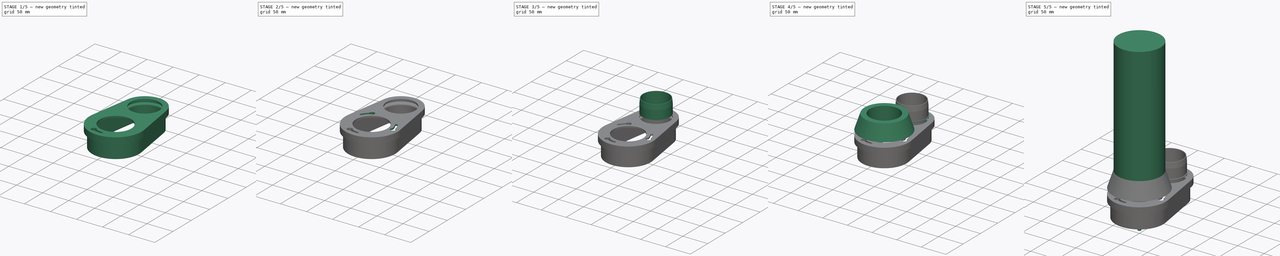
[diagram: build sequence overview — one tinted view per stage of 5, left to right]
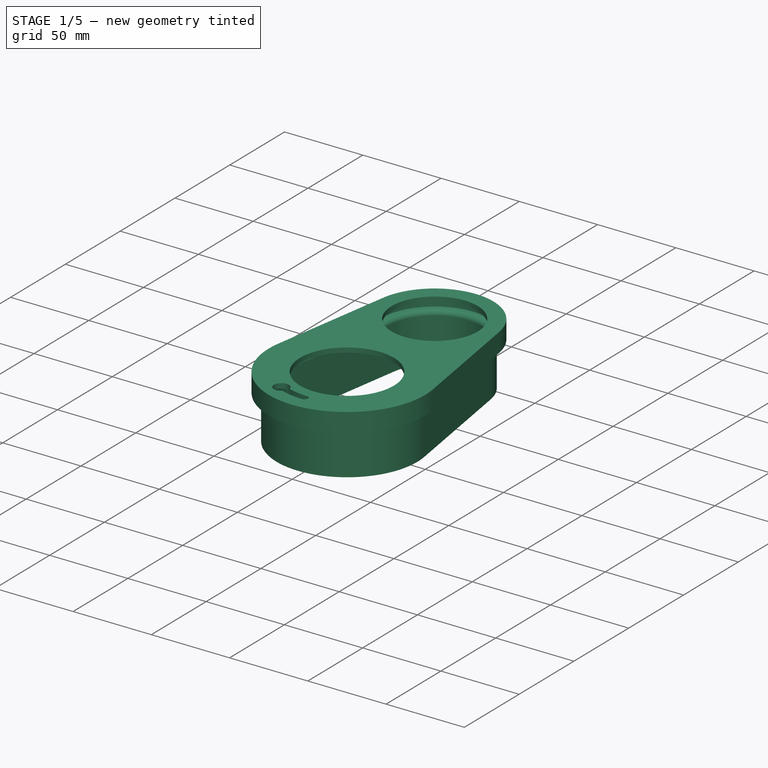
[diagram: stage 1 of 5 — iso view after this stage's code; geometry added in this stage tinted green]
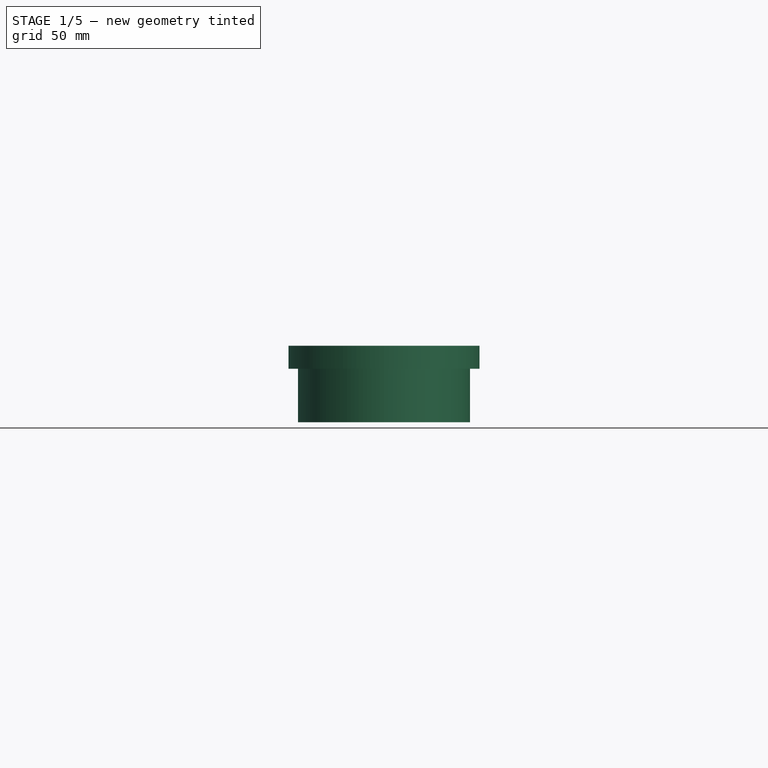
[diagram: stage 1 of 5 — front view after this stage's code; geometry added in this stage tinted green]
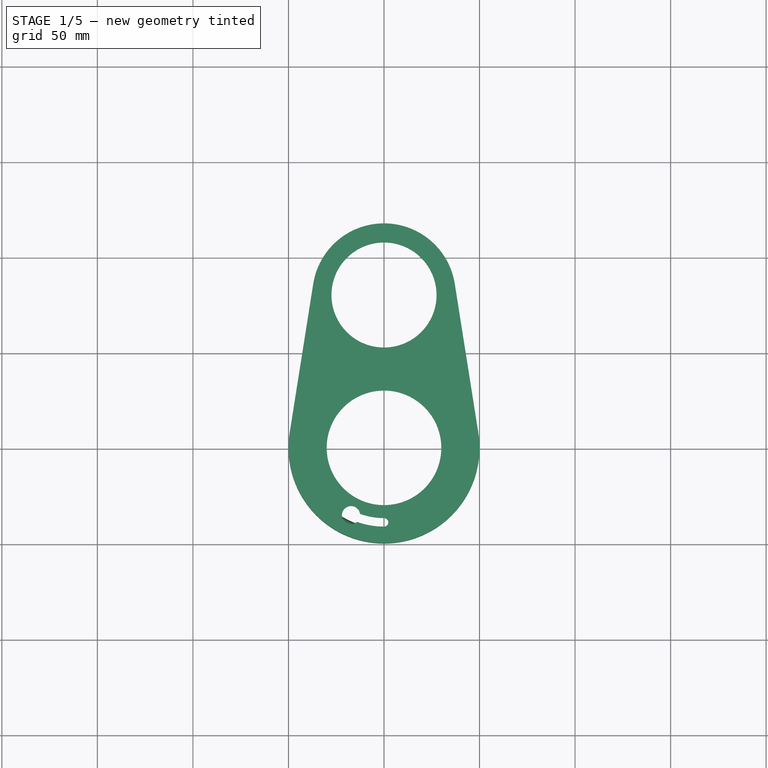
[diagram: stage 1 of 5 — top view after this stage's code; geometry added in this stage tinted green]
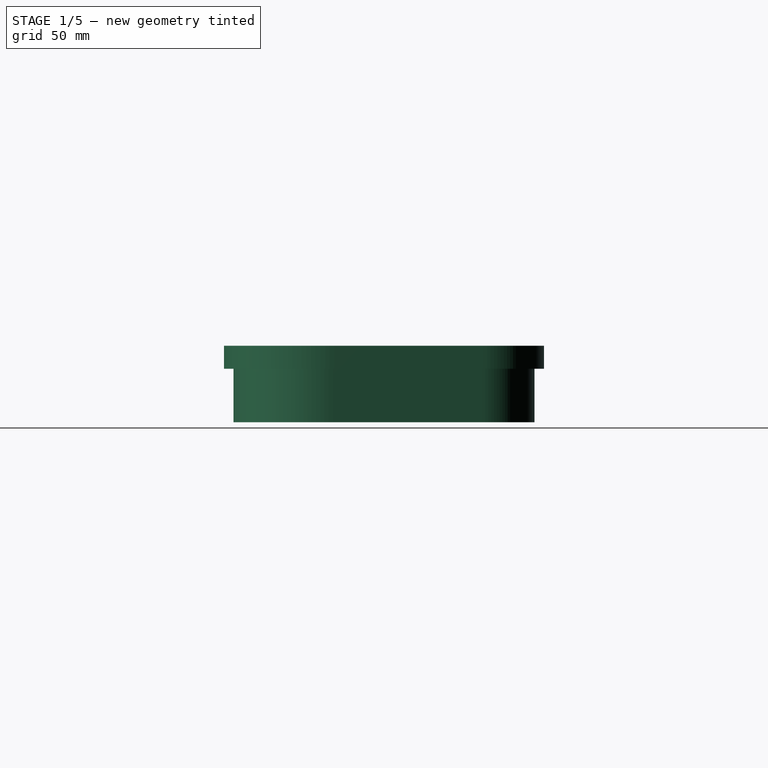
[diagram: stage 1 of 5 — right view after this stage's code; geometry added in this stage tinted green]
FCSTD DOCUMENT  (FreeCAD 0.19R23141 (Git))
Label: 80mm_shoe
License: All rights reserved
LicenseURL: http://en.wikipedia.org/wiki/All_rights_reserved
objects: Sketcher::SketchObject×14, PartDesign::Pocket×6, PartDesign::Pad×5, PartDesign::Body×4, PartDesign::Chamfer×4, PartDesign::PolarPattern×3, PartDesign::Revolution×2, PartDesign::Hole×2, PartDesign::Thickness×1, PartDesign::ShapeBinder×1
note: 62 computed .brp shape members not serialized (recipe doc carries the construction recipe); baked Part::Feature solids carry a one-line shape summary decoded from their .brp

FEATURE [PartDesign::Body] Body  label="Spindle"
  Group = -> [Sketch,Revolution,Sketch001,Pocket]
  Origin = -> Origin
  Tip = -> Pocket
FEATURE [Sketcher::SketchObject] Sketch002
  AttachmentOffset = pos=(0,0,22) rot=(0,0,1;0rad)
  MapMode = 5
  Placement = pos=(0,0,22) rot=(0,0,1;0rad)
  Support = -> [XY_Plane001]
  sketch-geometry (4):
    g0: ArcOfCircle CenterX=0 CenterY=0 CenterZ=0 NormalX=0 NormalY=0 NormalZ=1 AngleXU=0 Radius=50 StartAngle=2.9847 EndAngle=6.44008
    g1: ArcOfCircle CenterX=0 CenterY=80 CenterZ=0 NormalX=0 NormalY=0 NormalZ=1 AngleXU=0 Radius=37.5 StartAngle=0.156893 EndAngle=2.9847
    g2: LineSegment StartX=49.3859 StartY=7.8125 StartZ=0 EndX=37.0394 EndY=85.8594 EndZ=0
    g3: LineSegment StartX=-49.3859 StartY=7.8125 StartZ=0 EndX=-37.0394 EndY=85.8594 EndZ=0
  constraints (9):
    c: Tangent(g0,g3)
    c: Tangent(g0,g2)
    c: Tangent(g2,g1)
    c: Tangent(g3,g1)
    c: Coincident(g0,g-1)
    c: Diameter(g0) = 100
    c: DistanceY(g0,g1) = 80
    c: PointOnObject(g1,g-2)
    c: Diameter(g1) = 75
FEATURE [PartDesign::Pad] Pad
  Direction = (1,1,1)
  Length = 40
  Length2 = 100
  Profile = -> Sketch002
  Type = 0
FEATURE [Sketcher::SketchObject] Sketch003
  ExternalGeometry = -> [Pad]
  MapMode = 5
  Placement = pos=(0,0,62) rot=(0,0,1;0rad)
  Support = -> [Pad]
  sketch-geometry (2):
    g0: Circle CenterX=0 CenterY=80 CenterZ=0 NormalX=0 NormalY=0 NormalZ=1 AngleXU=0 Radius=27.5
    g1: Circle CenterX=0 CenterY=0 CenterZ=0 NormalX=0 NormalY=0 NormalZ=1 AngleXU=0 Radius=30
  constraints (4):
    c: Coincident(g0,g-3)
    c: Diameter(g0) = 55
    c: Coincident(g1,g-1)
    c: Diameter(g1) = 60
FEATURE [Sketcher::SketchObject] Sketch004
  ExternalGeometry = -> [Pad]
  MapMode = 5
  Placement = pos=(0,0,22) rot=(1,0,0;3.14159rad)
  Support = -> [Pad]
  sketch-geometry (5):
    g0: ArcOfCircle CenterX=0 CenterY=-80 CenterZ=0 NormalX=0 NormalY=0 NormalZ=1 AngleXU=0 Radius=32.5 StartAngle=3.29849 EndAngle=6.12629
    g1: ArcOfCircle CenterX=0 CenterY=0 CenterZ=0 NormalX=0 NormalY=0 NormalZ=1 AngleXU=0 Radius=45 StartAngle=6.12629 EndAngle=9.58167
    g2: LineSegment StartX=-44.4473 StartY=-7.03125 StartZ=0 EndX=-32.1008 EndY=-85.0781 EndZ=0
    g3: LineSegment StartX=32.1008 StartY=-85.0781 StartZ=0 EndX=44.4473 EndY=-7.03125 EndZ=0
    g4: Circle CenterX=0 CenterY=0 CenterZ=0 NormalX=0 NormalY=0 NormalZ=1 AngleXU=0 Radius=150
  constraints (10):
    c: Coincident(g0,g-4)
    c: Coincident(g1,g-1)
    c: Tangent(g1,g2) = -1.5708
    c: Tangent(g0,g3) = -1.5708
    c: Tangent(g2,g0) = -1.5708
    c: Tangent(g3,g1) = -1.5708
    c: Diameter(g1) = 90
    c: Diameter(g0) = 65
    c: Coincident(g4,g1)
    c: Diameter(g4) = 300
FEATURE [PartDesign::Pocket] Pocket001
  BaseFeature = -> Pad
  Length = 28
  Length2 = 100
  Profile = -> Sketch004
  Type = 0
FEATURE [PartDesign::Thickness] Thickness
  Base = -> Pocket001 [Face11]
  BaseFeature = -> Pocket001
  Intersection = false
  Join = 0
  Mode = 0
  Reversed = true
  SupportTransform = false
  Value = 3
FEATURE [PartDesign::Pocket] Pocket002
  BaseFeature = -> Thickness
  Length = 5
  Length2 = 100
  Profile = -> Sketch003
  Type = 1
FEATURE [Sketcher::SketchObject] Sketch005
  MapMode = 5
  Placement = pos=(0,0,62) rot=(0,0,1;0rad)
  Support = -> [Pocket002]
  sketch-geometry (5):
    g0: ArcOfCircle CenterX=0 CenterY=-39 CenterZ=0 NormalX=0 NormalY=0 NormalZ=1 AngleXU=0 Radius=2.25 StartAngle=4.71239 EndAngle=7.85398
    g1: ArcOfCircle CenterX=0 CenterY=0 CenterZ=0 NormalX=0 NormalY=0 NormalZ=1 AngleXU=0 Radius=36.75 StartAngle=4.36332 EndAngle=4.71239
    g2: ArcOfCircle CenterX=0 CenterY=0 CenterZ=0 NormalX=0 NormalY=0 NormalZ=1 AngleXU=0 Radius=41.25 StartAngle=4.36332 EndAngle=4.71239
    g3: ArcOfCircle CenterX=-17.2698 CenterY=-35.2172 CenterZ=0 NormalX=0 NormalY=0 NormalZ=1 AngleXU=0 Radius=4.75 StartAngle=0.144404 EndAngle=5.44065
    g4: LineSegment [constr] StartX=0 StartY=0 StartZ=0 EndX=-14.1083 EndY=-38.7623 EndZ=0
  constraints (16):
    c: PointOnObject(g0,g-2)
    c: PointOnObject(g0,g-2)
    c: PointOnObject(g0,g-2)
    c: Coincident(g1,g-1)
    c: Coincident(g1,g0)
    c: Coincident(g2,g1)
    c: Coincident(g2,g0)
    c: Coincident(g3,g2)
    c: Coincident(g3,g1)
    c: Diameter(g3) = 9.5
    c: Diameter(g0) = 4.5
    c: Coincident(g4,g1)
    c: Coincident(g4,g2)
    c: PointOnObject(g1,g4)
    c: DistanceY(g0,g1) = 39
    c: Angle(g-2,g4) = 2.79253
FEATURE [PartDesign::Pocket] Pocket003
  BaseFeature = -> Pocket002
  Length = 5
  Length2 = 100
  Profile = -> Sketch005
  Type = 0
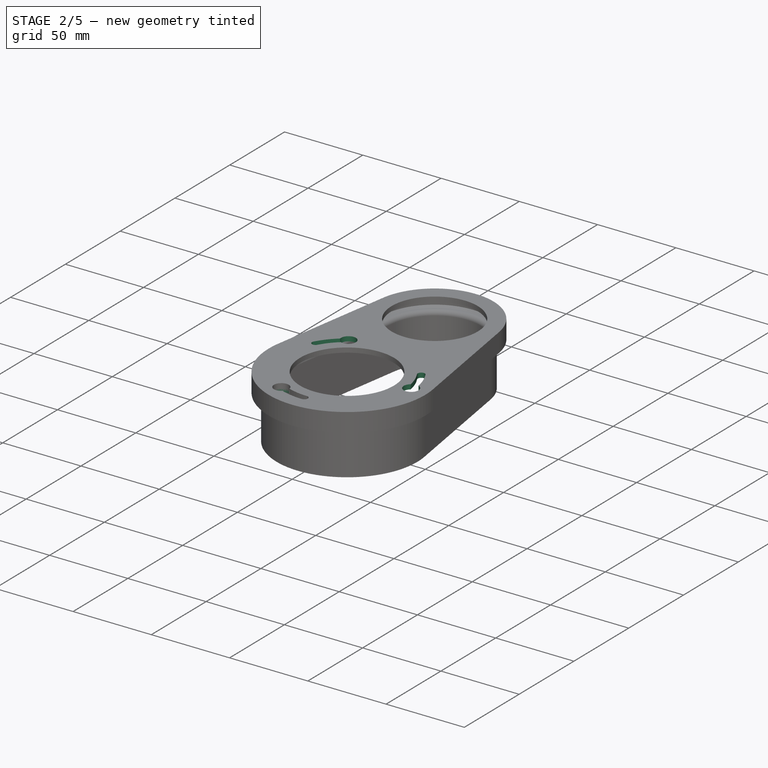
[diagram: stage 2 of 5 — iso view after this stage's code; geometry added in this stage tinted green]
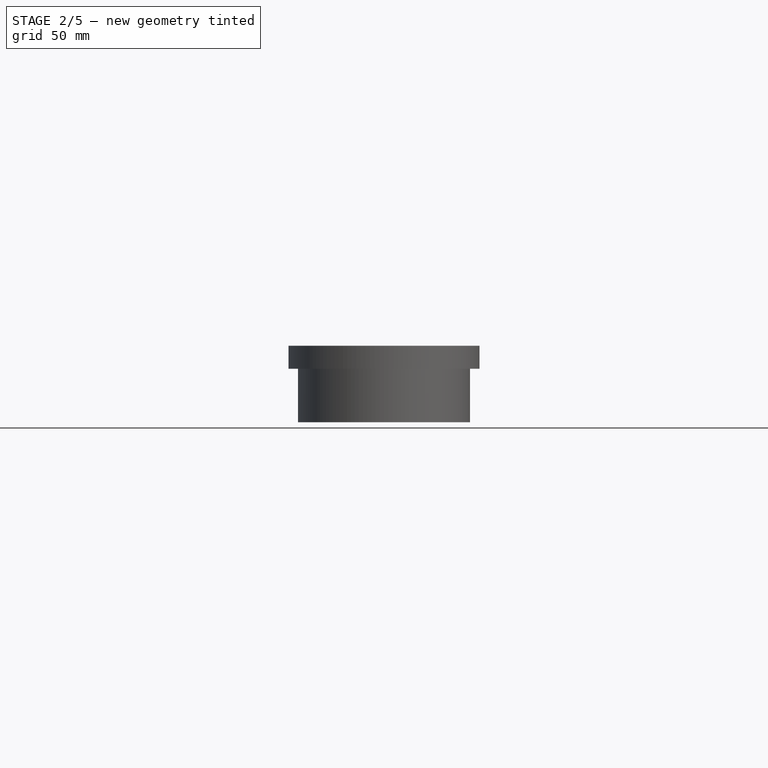
[diagram: stage 2 of 5 — front view after this stage's code; geometry added in this stage tinted green]
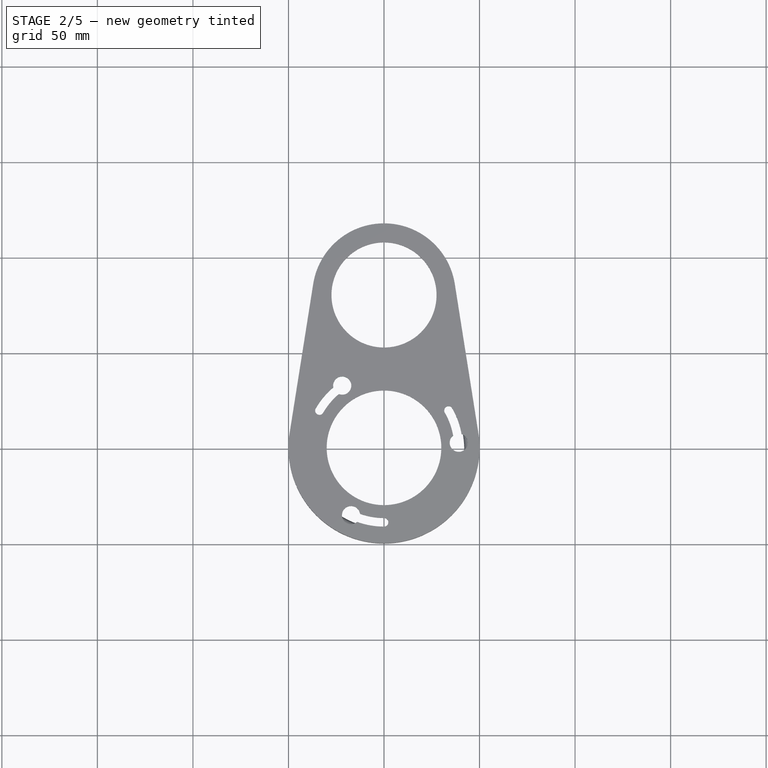
[diagram: stage 2 of 5 — top view after this stage's code; geometry added in this stage tinted green]
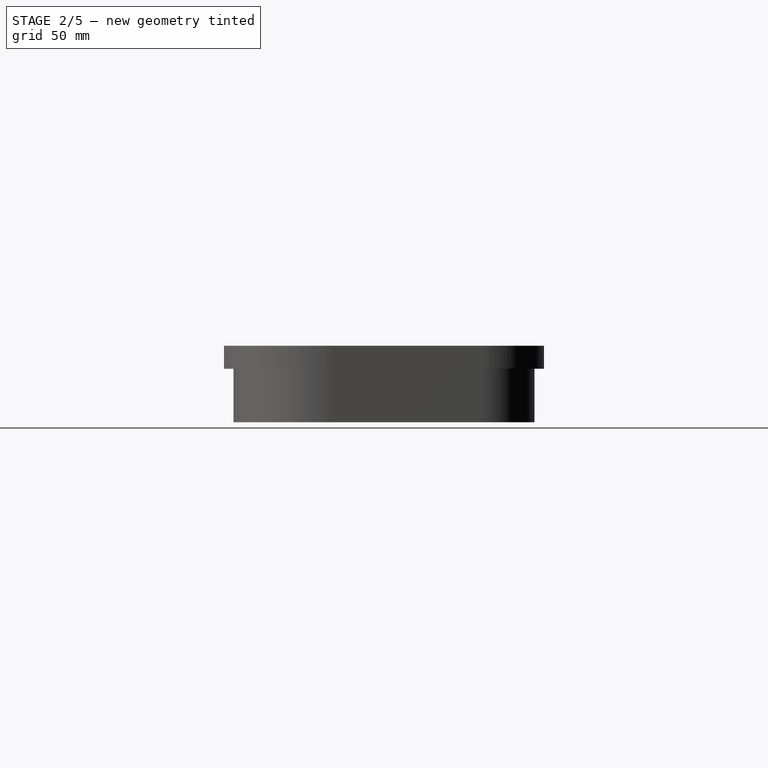
[diagram: stage 2 of 5 — right view after this stage's code; geometry added in this stage tinted green]
FEATURE [PartDesign::PolarPattern] PolarPattern
  Angle = 360
  Axis = -> Sketch005 [N_Axis]
  BaseFeature = -> Pocket003
  Occurrences = 3
  Originals = -> [Pocket003]
FEATURE [PartDesign::Body] Body003  label="Pipe"
  Group = -> [CopyChamfer001,Sketch011,Pad001,Chamfer002,Pad002,Sketch012,Pad003]
  Origin = -> Origin003
  Tip = -> Pad003
FEATURE [PartDesign::Chamfer] Chamfer
  Angle = 60
  Base = -> PolarPattern [Edge89]
  BaseFeature = -> PolarPattern
  ChamferType = 2
  FlipDirection = false
  Size = 1.1
  Size2 = 1
  SupportTransform = false
FEATURE [PartDesign::Chamfer] Chamfer003
  Angle = 45
  Base = -> Chamfer [Edge11]
  BaseFeature = -> Chamfer
  ChamferType = 0
  FlipDirection = false
  Size = 2
  Size2 = 1
  SupportTransform = false
FEATURE [Sketcher::SketchObject] Sketch013
  ExternalGeometry = -> [Chamfer003]
  MapMode = 5
  Placement = pos=(0,0,59) rot=(1,0,0;3.14159rad)
  Support = -> [Chamfer003]
  sketch-geometry (7):
    g0: ArcOfCircle CenterX=-17.2698 CenterY=35.2172 CenterZ=0 NormalX=0 NormalY=0 NormalZ=1 AngleXU=0 Radius=9 StartAngle=1.91986 EndAngle=5.06145
    g1: ArcOfCircle CenterX=-17.2698 CenterY=35.2172 CenterZ=0 NormalX=0 NormalY=0 NormalZ=1 AngleXU=0 Radius=4.75 StartAngle=1.91986 EndAngle=5.06145
    g2: LineSegment StartX=-20.348 StartY=43.6745 StartZ=0 EndX=-18.8944 EndY=39.6808 EndZ=0
    g3: LineSegment StartX=-15.6452 StartY=30.7537 StartZ=0 EndX=-14.1916 EndY=26.76 EndZ=0
    g4: LineSegment [constr] StartX=-17.2698 StartY=35.2172 StartZ=0 EndX=-18.8944 EndY=39.6808 EndZ=0
    g5: LineSegment [constr] StartX=-17.2698 StartY=35.2172 StartZ=0 EndX=-15.6452 EndY=30.7537 EndZ=0
    g6: LineSegment [constr] StartX=-12.5692 StartY=34.5337 StartZ=0 EndX=-14.1083 EndY=38.7623 EndZ=0
  constraints (18):
    c: Coincident(g0,g-3)
    c: Radius(g0) = 9
    c: Coincident(g1,g0)
    c: PointOnObject(g1,g-3)
    c: Coincident(g2,g0)
    c: Coincident(g2,g1)
    c: Coincident(g3,g1)
    c: Coincident(g3,g0)
    c: Parallel(g3,g2)
    c: Coincident(g4,g0)
    c: Coincident(g4,g1)
    c: Coincident(g5,g0)
    c: Coincident(g5,g1)
    c: Parallel(g4,g5)
    c: Parallel(g5,g3)
    c: Coincident(g6,g-3)
    c: Coincident(g6,g-3)
    c: Parallel(g6,g4)
FEATURE [PartDesign::Pad] Pad004
  BaseFeature = -> Chamfer003
  Direction = (1,1,1)
  Length = 2
  Length2 = 100
  Profile = -> Sketch013
  Type = 0
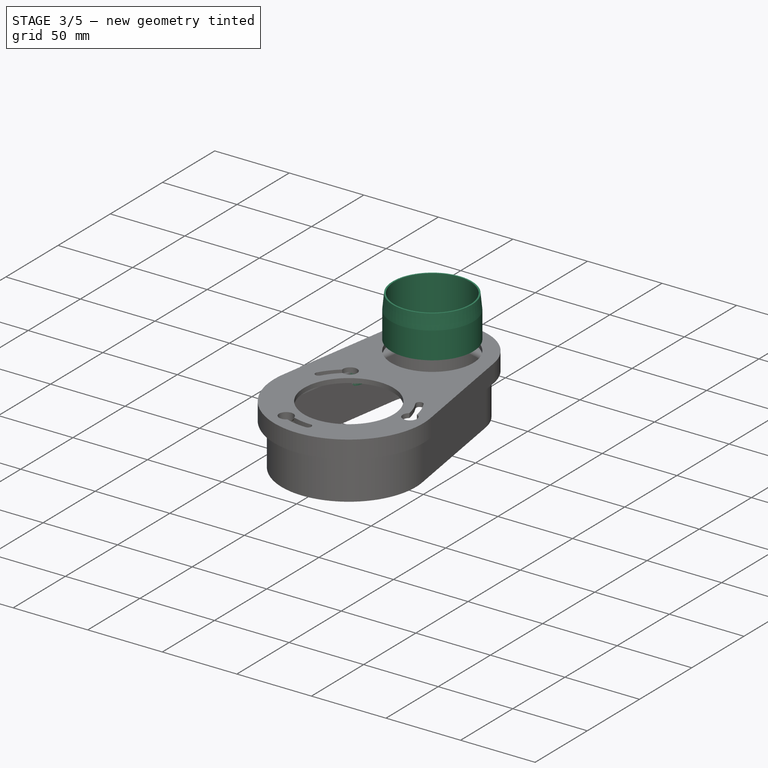
[diagram: stage 3 of 5 — iso view after this stage's code; geometry added in this stage tinted green]
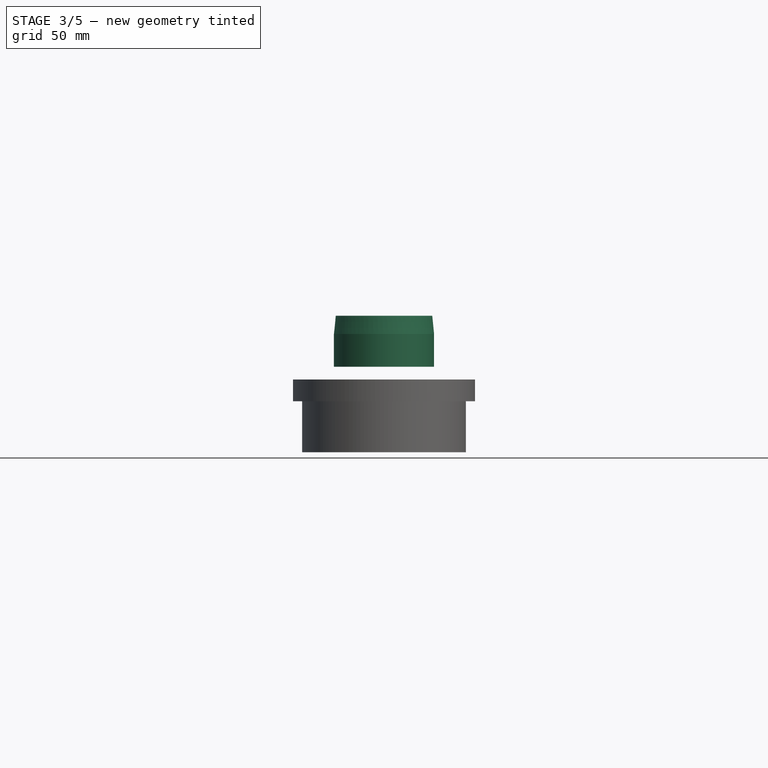
[diagram: stage 3 of 5 — front view after this stage's code; geometry added in this stage tinted green]
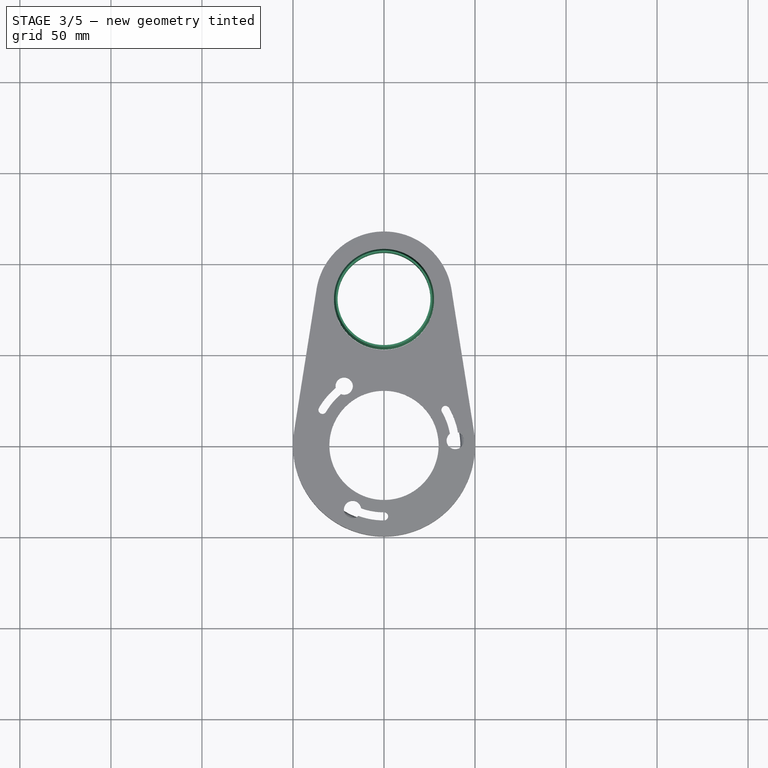
[diagram: stage 3 of 5 — top view after this stage's code; geometry added in this stage tinted green]
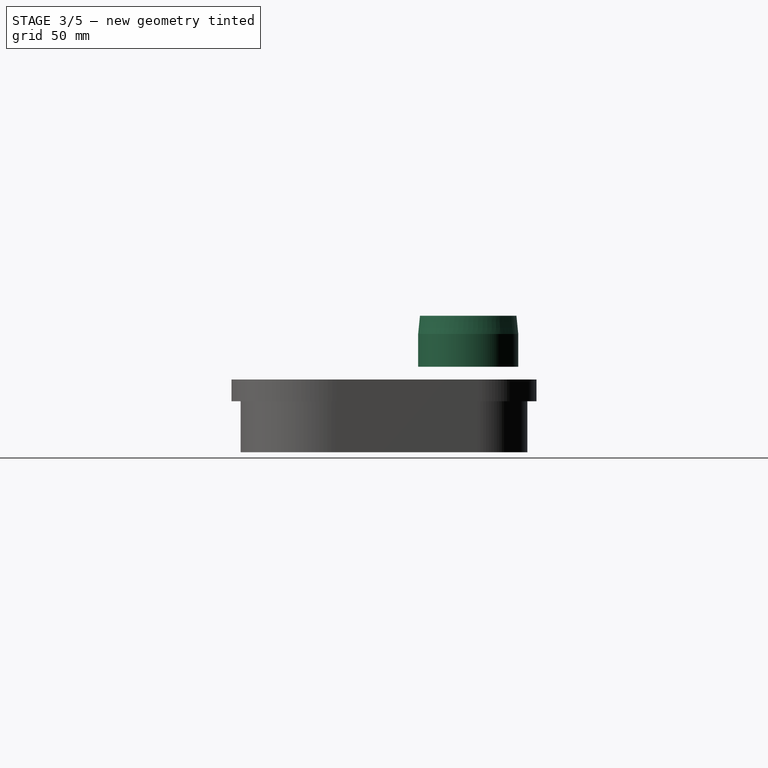
[diagram: stage 3 of 5 — right view after this stage's code; geometry added in this stage tinted green]
FEATURE [PartDesign::Body] Body002  label="Top"
  Group = -> [Sketch006,Revolution001,Sketch007,Hole,PolarPattern001,Sketch008,Pocket004,Sketch009,Hole001,Sketch010,Pocket005]
  Origin = -> Origin002
  Tip = -> Pocket005
FEATURE [PartDesign::ShapeBinder] CopyChamfer001
  TraceSupport = false
FEATURE [Sketcher::SketchObject] Sketch011
  MapMode = 5
  Placement = pos=(0,0,72) rot=(0,0,1;0rad)
  Support = -> [CopyChamfer001]
  sketch-geometry (2):
    g0: Circle CenterX=0 CenterY=80 CenterZ=0 NormalX=0 NormalY=0 NormalZ=1 AngleXU=0 Radius=27.5
    g1: Circle CenterX=0 CenterY=80 CenterZ=0 NormalX=0 NormalY=0 NormalZ=1 AngleXU=0 Radius=25.5
  constraints (5):
    c: PointOnObject(g0,g-2)
    c: Diameter(g0) = 55
    c: DistanceY(g-1,g0) = 80
    c: Coincident(g1,g0)
    c: Diameter(g1) = 51
FEATURE [PartDesign::Pad] Pad001
  Direction = (1,1,1)
  Length = 25
  Length2 = 100
  Profile = -> Sketch011
  Type = 0
FEATURE [PartDesign::Chamfer] Chamfer002
  Angle = 45
  Base = -> Pad001 [Edge3]
  BaseFeature = -> Pad001
  ChamferType = 1
  FlipDirection = false
  Size = 10
  Size2 = 1
  SupportTransform = false
FEATURE [PartDesign::Pad] Pad002
  BaseFeature = -> Chamfer002
  Direction = (1,1,1)
  Length = 3
  Length2 = 100
  Profile = -> Chamfer002 [Face3]
  Type = 0
FEATURE [PartDesign::PolarPattern] PolarPattern002
  Angle = 360
  Axis = -> Sketch013 [N_Axis]
  BaseFeature = -> Pad004
  Occurrences = 3
  Originals = -> [Pad004]
FEATURE [PartDesign::Chamfer] Chamfer004
  Angle = 45
  Base = -> PolarPattern002 [Edge115,Edge112,Edge71,Edge73,Edge65,Edge67]
  BaseFeature = -> PolarPattern002
  ChamferType = 0
  FlipDirection = false
  Size = 1.5
  Size2 = 1
  SupportTransform = false
FEATURE [PartDesign::Body] Body001  label="Bottom"
  Group = -> [Sketch002,Pad,Sketch003,Sketch004,Pocket001,Thickness,Pocket002,Sketch005,Pocket003,PolarPattern,Chamfer,Chamfer003,Sketch013,Pad004,PolarPattern002,Chamfer004]
  Origin = -> Origin001
  Tip = -> Chamfer004
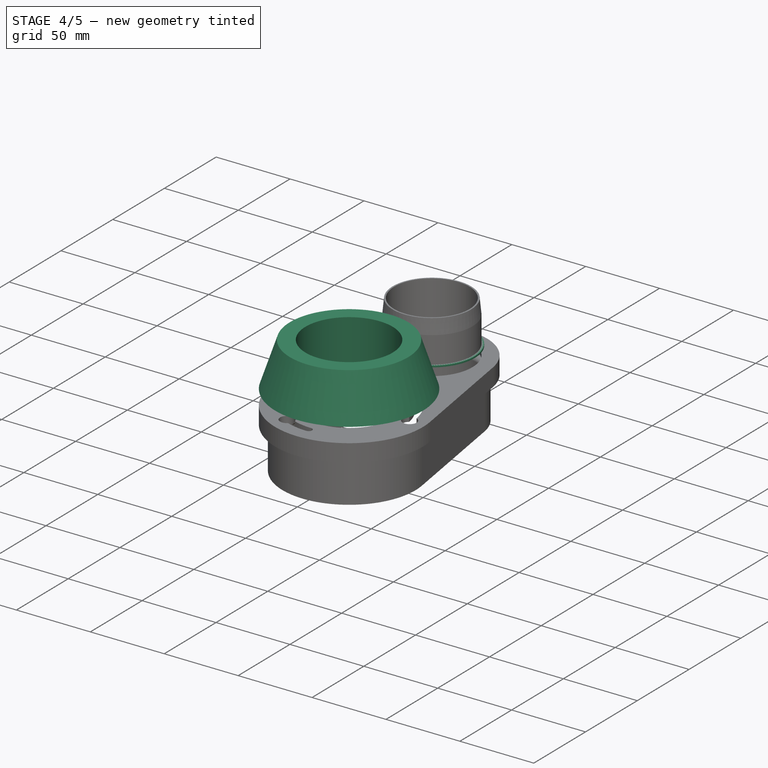
[diagram: stage 4 of 5 — iso view after this stage's code; geometry added in this stage tinted green]
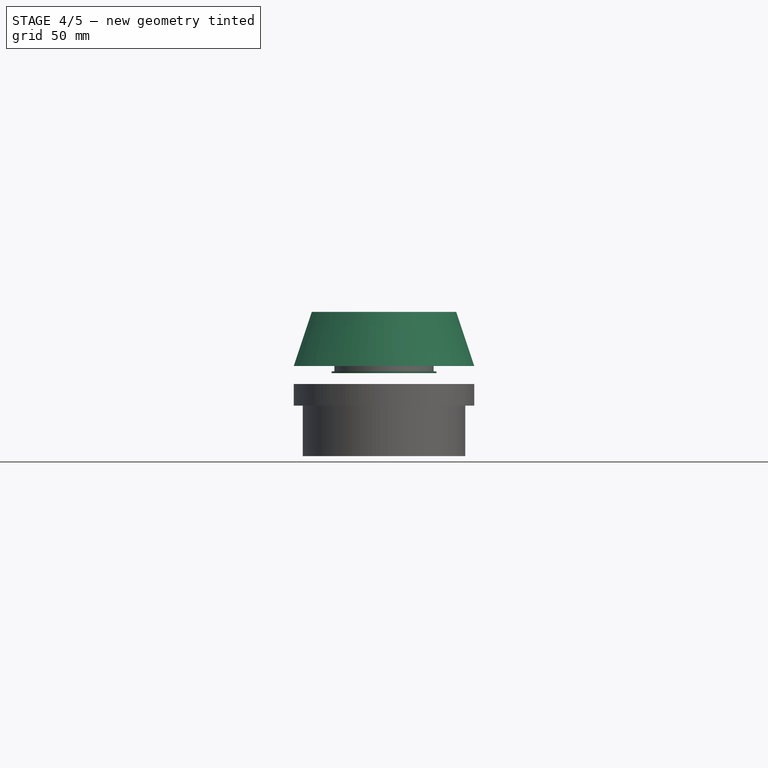
[diagram: stage 4 of 5 — front view after this stage's code; geometry added in this stage tinted green]
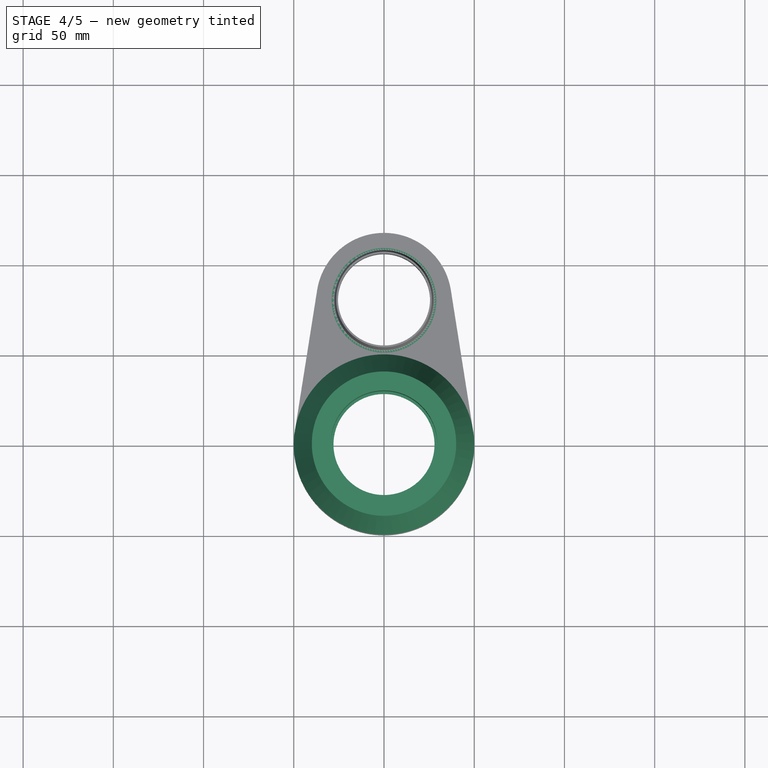
[diagram: stage 4 of 5 — top view after this stage's code; geometry added in this stage tinted green]
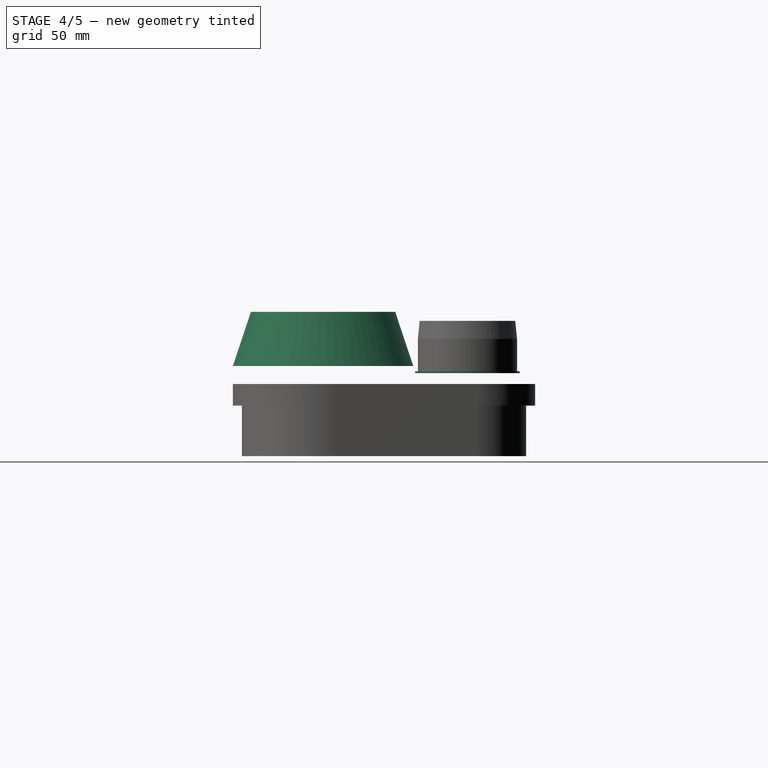
[diagram: stage 4 of 5 — right view after this stage's code; geometry added in this stage tinted green]
FEATURE [Sketcher::SketchObject] Sketch006
  MapMode = 5
  Placement = pos=(0,0,0) rot=(0.57735,0.57735,0.57735;2.0944rad)
  Support = -> [YZ_Plane002]
  sketch-geometry (6):
    g0: LineSegment StartX=-29.5 StartY=102 StartZ=0 EndX=-29.5 EndY=74 EndZ=0
    g1: LineSegment StartX=-29.5 StartY=74 StartZ=0 EndX=-28 EndY=74 EndZ=0
    g2: LineSegment StartX=-28 StartY=74 StartZ=0 EndX=-28 EndY=72 EndZ=0
    g3: LineSegment StartX=-28 StartY=72 StartZ=0 EndX=-50 EndY=72 EndZ=0
    g4: LineSegment StartX=-50 StartY=72 StartZ=0 EndX=-40 EndY=102 EndZ=0
    g5: LineSegment StartX=-40 StartY=102 StartZ=0 EndX=-29.5 EndY=102 EndZ=0
  constraints (18):
    c: Vertical(g0)
    c: Coincident(g0,g1)
    c: Horizontal(g1)
    c: Coincident(g1,g2)
    c: Vertical(g2)
    c: Coincident(g2,g3)
    c: Horizontal(g3)
    c: Coincident(g3,g4)
    c: Coincident(g4,g5)
    c: Coincident(g5,g0)
    c: Horizontal(g5)
    c: DistanceX(g1,g-1) = 28
    c: DistanceX(g0,g-1) = 29.5
    c: DistanceY(g-1,g0) = 74
    c: DistanceY(g2,g2) = 2
    c: DistanceX(g3,g-1) = 50
    c: DistanceX(g4,g-1) = 40
    c: DistanceY(g0,g0) = 28
FEATURE [PartDesign::Revolution] Revolution001
  Angle = 360
  Axis = (-2e-16,3e-16,1)
  Base = (0,0,0)
  Placement = pos=(0,0,0) rot=(0.57735,0.57735,0.57735;2.0944rad)
  Profile = -> Sketch006
  ReferenceAxis = -> Sketch006 [V_Axis]
FEATURE [Sketcher::SketchObject] Sketch007
  MapMode = 5
  Placement = pos=(-4e-14,2.8e-14,72) rot=(0.707107,0.707107,0;3.14159rad)
  Support = -> [Revolution001]
  sketch-geometry (1):
    g0: Circle CenterX=-39 CenterY=0 CenterZ=0 NormalX=0 NormalY=0 NormalZ=1 AngleXU=0 Radius=2.1
  constraints (3):
    c: PointOnObject(g0,g-1)
    c: Diameter(g0) = 4.2
    c: DistanceX(g0,g-1) = 39
FEATURE [PartDesign::Hole] Hole
  BaseFeature = -> Revolution001
  Depth = 25
  DepthType = 0
  Diameter = 4.2
  DrillPoint = 1
  DrillPointAngle = 60
  HoleCutCountersinkAngle = 90
  HoleCutDepth = 0
  HoleCutDiameter = 0
  HoleCutType = 0
  ModelActualThread = false
  Placement = pos=(0,0,0) rot=(0.57735,0.57735,0.57735;2.0944rad)
  Profile = -> Sketch007
  Tapered = false
  TaperedAngle = 90
  ThreadAngle = 0
  ThreadClass = 0
  ThreadCutOffInner = 0
  ThreadCutOffOuter = 0
  ThreadDirection = 0
  ThreadFit = 0
  ThreadPitch = 0
  ThreadSize = 0
  ThreadType = 0
  Threaded = false
FEATURE [PartDesign::PolarPattern] PolarPattern001
  Angle = 360
  Axis = -> Sketch007 [N_Axis]
  BaseFeature = -> Hole
  Occurrences = 3
  Originals = -> [Hole]
  Placement = pos=(0,0,0) rot=(0.57735,0.57735,0.57735;2.0944rad)
FEATURE [Sketcher::SketchObject] Sketch012
  MapMode = 5
  Placement = pos=(0,0,69) rot=(1,0,0;3.14159rad)
  Support = -> [Pad002]
  sketch-geometry (2):
    g0: Circle CenterX=0 CenterY=-80 CenterZ=0 NormalX=0 NormalY=0 NormalZ=1 AngleXU=0 Radius=25.5
    g1: Circle CenterX=0 CenterY=-80 CenterZ=0 NormalX=0 NormalY=0 NormalZ=1 AngleXU=0 Radius=29
  constraints (5):
    c: PointOnObject(g0,g-2)
    c: DistanceY(g0,g-1) = 80
    c: Coincident(g1,g0)
    c: Diameter(g1) = 58
    c: Diameter(g0) = 51
FEATURE [PartDesign::Pad] Pad003
  BaseFeature = -> Pad002
  Direction = (1,1,1)
  Length = 1
  Length2 = 100
  Profile = -> Sketch012
  Type = 0
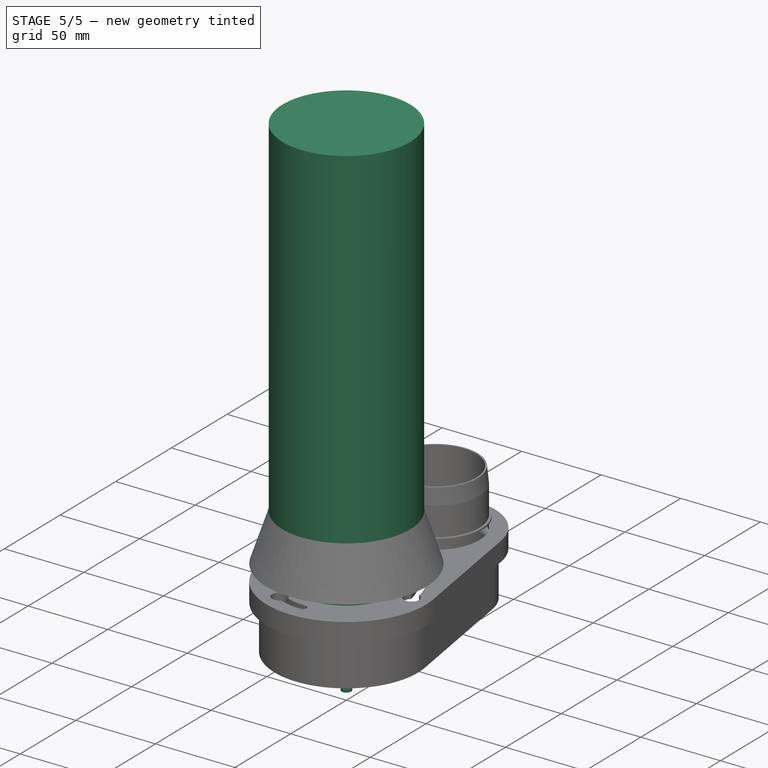
[diagram: stage 5 of 5 — iso view after this stage's code; geometry added in this stage tinted green]
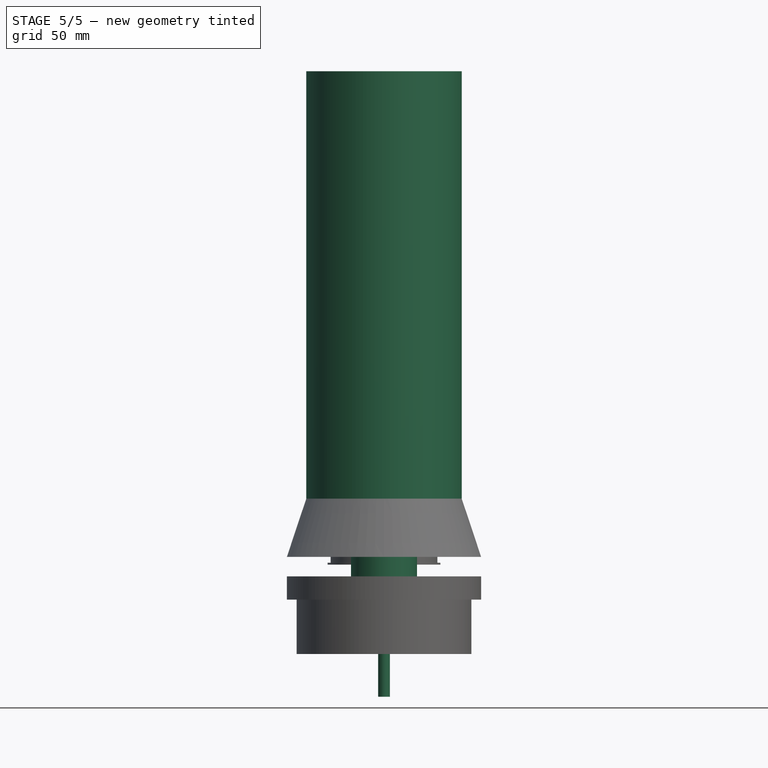
[diagram: stage 5 of 5 — front view after this stage's code; geometry added in this stage tinted green]
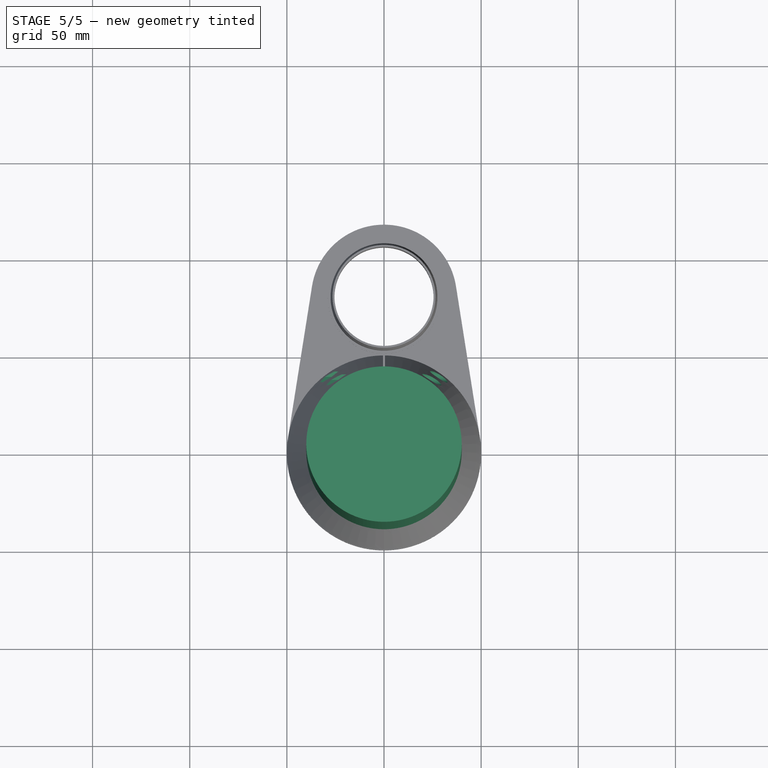
[diagram: stage 5 of 5 — top view after this stage's code; geometry added in this stage tinted green]
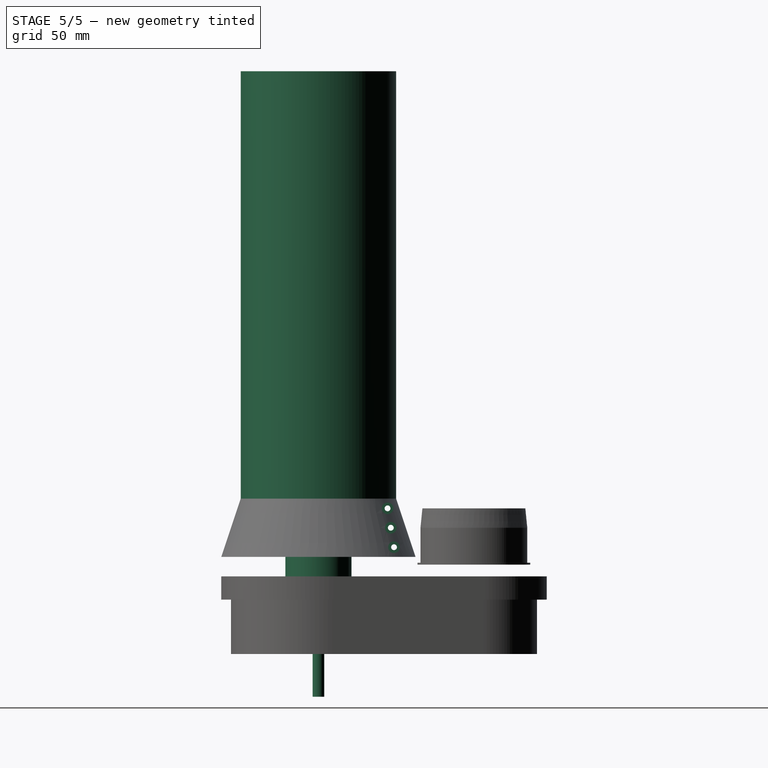
[diagram: stage 5 of 5 — right view after this stage's code; geometry added in this stage tinted green]
FEATURE [Sketcher::SketchObject] Sketch
  MapMode = 5
  Placement = pos=(0,0,0) rot=(1,0,0;1.5708rad)
  Support = -> [XZ_Plane]
  sketch-geometry (12):
    g0: LineSegment StartX=-40 StartY=102 StartZ=0 EndX=-30 EndY=102 EndZ=0
    g1: LineSegment StartX=-30 StartY=102 StartZ=0 EndX=-30 EndY=87 EndZ=0
    g2: LineSegment StartX=-30 StartY=87 StartZ=0 EndX=-30.5 EndY=87 EndZ=0
    g3: LineSegment StartX=-30.5 StartY=87 StartZ=0 EndX=-30.5 EndY=74 EndZ=0
    g4: LineSegment StartX=-30.5 StartY=74 StartZ=0 EndX=-17 EndY=74 EndZ=0
    g5: LineSegment StartX=-17 StartY=74 StartZ=0 EndX=-17 EndY=22 EndZ=0
    g6: LineSegment StartX=-17 StartY=22 StartZ=0 EndX=-3 EndY=22 EndZ=0
    g7: LineSegment StartX=-3 StartY=22 StartZ=0 EndX=-3 EndY=0 EndZ=0
    g8: LineSegment StartX=-3 StartY=0 StartZ=0 EndX=0 EndY=0 EndZ=0
    g9: LineSegment StartX=-40 StartY=102 StartZ=0 EndX=-40 EndY=322 EndZ=0
    g10: LineSegment StartX=-40 StartY=322 StartZ=0 EndX=0 EndY=322 EndZ=0
    g11: LineSegment StartX=0 StartY=322 StartZ=0 EndX=0 EndY=0 EndZ=0
  constraints (35):
    c: Horizontal(g0)
    c: Coincident(g0,g1)
    c: Vertical(g1)
    c: Coincident(g1,g2)
    c: Coincident(g2,g3)
    c: Vertical(g3)
    c: Coincident(g3,g4)
    c: Horizontal(g4)
    c: Coincident(g4,g5)
    c: Vertical(g5)
    c: Coincident(g5,g6)
    c: Horizontal(g6)
    c: Coincident(g6,g7)
    c: Vertical(g7)
    c: Coincident(g7,g8)
    c: Coincident(g8,g-1)
    c: Horizontal(g8)
    c: DistanceX(g8,g8) = 3
    c: DistanceX(g5,g8) = 17
    c: DistanceY(g7,g7) = 22
    c: DistanceY(g5,g5) = 52
    c: DistanceX(g3,g8) = 30.5
    c: DistanceX(g1,g8) = 30
    c: Horizontal(g2)
    c: DistanceY(g3,g3) = 13
    c: DistanceY(g1,g1) = 15
    c: DistanceX(g0,g8) = 40
    c: Coincident(g0,g9)
    c: Vertical(g9)
    c: Coincident(g9,g10)
    c: PointOnObject(g10,g-2)
    c: Horizontal(g10)
    c: Coincident(g10,g11)
    c: Coincident(g11,g8)
    c: DistanceY(g9,g9) = 220
FEATURE [PartDesign::Revolution] Revolution
  Angle = 360
  Axis = (0,2e-16,1)
  Base = (0,0,0)
  Placement = pos=(0,0,0) rot=(1,0,0;1.5708rad)
  Profile = -> Sketch
  ReferenceAxis = -> Sketch [V_Axis]
FEATURE [Sketcher::SketchObject] Sketch001
  MapMode = 5
  Placement = pos=(0,1.46e-14,22) rot=(1,0,0;3.14159rad)
  Support = -> [Revolution]
  sketch-geometry (8):
    g0: LineSegment StartX=17.3205 StartY=-1.8e-15 StartZ=0 EndX=8.66025 EndY=15 EndZ=0
    g1: LineSegment StartX=8.66025 StartY=15 StartZ=0 EndX=-8.66025 EndY=15 EndZ=0
    g2: LineSegment StartX=-8.66025 StartY=15 StartZ=0 EndX=-17.3205 EndY=3.6e-15 EndZ=0
    g3: LineSegment StartX=-17.3205 StartY=3.6e-15 StartZ=0 EndX=-8.66025 EndY=-15 EndZ=0
    g4: LineSegment StartX=-8.66025 StartY=-15 StartZ=0 EndX=8.66025 EndY=-15 EndZ=0
    g5: LineSegment StartX=8.66025 StartY=-15 StartZ=0 EndX=17.3205 EndY=-1.8e-15 EndZ=0
    g6: Circle [constr] CenterX=0 CenterY=0 CenterZ=0 NormalX=0 NormalY=0 NormalZ=1 AngleXU=0 Radius=17.3205
    g7: Circle CenterX=0 CenterY=0 CenterZ=0 NormalX=0 NormalY=0 NormalZ=1 AngleXU=0 Radius=25.4724
  constraints (17):
    c: Coincident(g0,g1)
    c: Coincident(g1,g2)
    c: Coincident(g2,g3)
    c: Coincident(g3,g4)
    c: Coincident(g4,g5)
    c: Coincident(g5,g0)
    c: Equal(g0, g1-g5) x5
    c: PointOnObject(g0,g6)
    c: PointOnObject(g1,g6)
    c: PointOnObject(g2,g6)
    c: PointOnObject(g3,g6)
    c: PointOnObject(g4,g6)
    c: PointOnObject(g5,g6)
    c: Coincident(g6,g-1)
    c: Horizontal(g1)
    c: DistanceY(g3,g1) = 30
    c: Coincident(g7,g-1)
FEATURE [PartDesign::Pocket] Pocket
  BaseFeature = -> Revolution
  Length = 20
  Length2 = 100
  Placement = pos=(0,0,0) rot=(1,0,0;1.5708rad)
  Profile = -> Sketch001
  Type = 0
FEATURE [Sketcher::SketchObject] Sketch008
  MapMode = 5
  Placement = pos=(-9.06e-14,5.1e-14,102) rot=(0,0,-1;1.5708rad)
  Support = -> [PolarPattern001]
  sketch-geometry (6):
    g0: LineSegment StartX=-55 StartY=0.5 StartZ=0 EndX=-25 EndY=0.5 EndZ=0
    g1: LineSegment StartX=-25 StartY=0.5 StartZ=0 EndX=-25 EndY=-0.5 EndZ=0
    g2: LineSegment StartX=-25 StartY=-0.5 StartZ=0 EndX=-55 EndY=-0.5 EndZ=0
    g3: LineSegment StartX=-55 StartY=-0.5 StartZ=0 EndX=-55 EndY=0.5 EndZ=0
    g4: LineSegment [constr] StartX=-25 StartY=-0.5 StartZ=0 EndX=0 EndY=0 EndZ=0
    g5: LineSegment [constr] StartX=0 StartY=0 StartZ=0 EndX=-25 EndY=0.5 EndZ=0
  constraints (16):
    c: Coincident(g0,g1)
    c: Coincident(g1,g2)
    c: Coincident(g2,g3)
    c: Coincident(g3,g0)
    c: Horizontal(g0)
    c: Horizontal(g2)
    c: Vertical(g1)
    c: Vertical(g3)
    c: Coincident(g1,g4)
    c: Coincident(g4,g-1)
    c: Coincident(g4,g5)
    c: Coincident(g5,g0)
    c: Equal(g5,g4)
    c: DistanceY(g1,g1) = 1
    c: DistanceX(g0,g0) = 30
    c: DistanceX(g0,g-1) = 25
FEATURE [PartDesign::Pocket] Pocket004
  BaseFeature = -> PolarPattern001
  Length = 5
  Length2 = 100
  Placement = pos=(0,0,0) rot=(0.57735,0.57735,0.57735;2.0944rad)
  Profile = -> Sketch008
  Type = 1
FEATURE [Sketcher::SketchObject] Sketch009
  AttachmentOffset = pos=(0,0,50) rot=(0,0,1;0rad)
  ExternalGeometry = -> [Pocket004]
  MapMode = 5
  Placement = pos=(50,-1.11e-14,1.11e-14) rot=(0.57735,0.57735,0.57735;2.0944rad)
  Support = -> [YZ_Plane002]
  sketch-geometry (16):
    g0: LineSegment [constr] StartX=39.9969 StartY=102 StartZ=0 EndX=49.9975 EndY=72 EndZ=0
    g1: LineSegment [constr] StartX=29.4958 StartY=102 StartZ=0 EndX=29.4958 EndY=72 EndZ=0
    g2: LineSegment [constr] StartX=29.4958 StartY=97 StartZ=0 EndX=35.5797 EndY=97 EndZ=0
    g3: LineSegment [constr] StartX=41.6636 StartY=97 StartZ=0 EndX=35.5797 EndY=97 EndZ=0
    g4: LineSegment [constr] StartX=29.4958 StartY=77 StartZ=0 EndX=38.9132 EndY=77 EndZ=0
    g5: LineSegment [constr] StartX=48.3307 StartY=77 StartZ=0 EndX=38.9132 EndY=77 EndZ=0
    g6: LineSegment [constr] StartX=29.4958 StartY=87 StartZ=0 EndX=37.2465 EndY=87 EndZ=0
    g7: LineSegment [constr] StartX=34.7463 StartY=102 StartZ=0 EndX=35.5797 EndY=97 EndZ=0
    g8: LineSegment [constr] StartX=35.5797 StartY=97 StartZ=0 EndX=36.4131 EndY=92 EndZ=0
    g9: LineSegment [constr] StartX=36.4131 StartY=92 StartZ=0 EndX=37.2465 EndY=87 EndZ=0
    g10: LineSegment [constr] StartX=37.2465 StartY=87 StartZ=0 EndX=38.0799 EndY=82 EndZ=0
    g11: LineSegment [constr] StartX=38.0799 StartY=82 StartZ=0 EndX=38.9132 EndY=77 EndZ=0
    g12: LineSegment [constr] StartX=38.9132 StartY=77 StartZ=0 EndX=39.7466 EndY=72 EndZ=0
    g13: Circle CenterX=35.5797 CenterY=97 CenterZ=0 NormalX=0 NormalY=0 NormalZ=1 AngleXU=0 Radius=3
    g14: Circle CenterX=37.2465 CenterY=87 CenterZ=0 NormalX=0 NormalY=0 NormalZ=1 AngleXU=0 Radius=3
    g15: Circle CenterX=38.9132 CenterY=77 CenterZ=0 NormalX=0 NormalY=0 NormalZ=1 AngleXU=0 Radius=3
  constraints (45):
    c: Coincident(g0,g-3)
    c: Coincident(g0,g-4)
    c: Coincident(g1,g-3)
    c: Vertical(g1)
    c: PointOnObject(g1,g-4)
    c: PointOnObject(g2,g1)
    c: Horizontal(g2)
    c: PointOnObject(g3,g0)
    c: Coincident(g3,g2)
    c: PointOnObject(g4,g1)
    c: Horizontal(g4)
    c: PointOnObject(g5,g0)
    c: Coincident(g5,g4)
    c: Horizontal(g5)
    c: Horizontal(g3)
    c: Equal(g2,g3)
    c: Equal(g4,g5)
    c: PointOnObject(g6,g1)
    c: Horizontal(g6)
    c: PointOnObject(g7,g-3)
    c: Coincident(g7,g2)
    c: Coincident(g7,g8)
    c: Coincident(g8,g9)
    c: Coincident(g9,g6)
    c: Coincident(g9,g10)
    c: Coincident(g10,g11)
    c: Coincident(g11,g4)
    c: Coincident(g11,g12)
    c: PointOnObject(g12,g-4)
    c: Parallel(g7,g8)
    c: Parallel(g8,g9)
    c: Parallel(g9,g10)
    c: Parallel(g10,g11)
    c: Parallel(g11,g12)
    c: Equal(g9,g8)
    c: Equal(g8,g7)
    c: Equal(g7,g10)
    c: Equal(g10,g11)
    c: Equal(g11,g12)
    c: Coincident(g13,g2)
    c: Coincident(g14,g6)
    c: Coincident(g15,g4)
    c: Diameter(g15) = 6
    c: Equal(g15,g14)
    c: Equal(g15,g13)
FEATURE [PartDesign::Hole] Hole001
  BaseFeature = -> Pocket004
  Depth = 100
  DepthType = 0
  Diameter = 3
  DrillPoint = 1
  DrillPointAngle = 118
  HoleCutCountersinkAngle = 90
  HoleCutDepth = 45
  HoleCutDiameter = 6
  HoleCutType = 1
  ModelActualThread = false
  Placement = pos=(0,0,0) rot=(0.57735,0.57735,0.57735;2.0944rad)
  Profile = -> Sketch009
  Tapered = false
  TaperedAngle = 90
  ThreadAngle = 0
  ThreadClass = 0
  ThreadCutOffInner = 0
  ThreadCutOffOuter = 0
  ThreadDirection = 0
  ThreadFit = 0
  ThreadPitch = 0
  ThreadSize = 0
  ThreadType = 0
  Threaded = false
FEATURE [Sketcher::SketchObject] Sketch010
  AttachmentOffset = pos=(0,0,50) rot=(0,0,1;0rad)
  ExternalGeometry = -> [Hole001]
  MapMode = 5
  Placement = pos=(-50,1.11e-14,-1.11e-14) rot=(-0.57735,0.57735,0.57735;4.18879rad)
  Support = -> [YZ_Plane002]
  sketch-geometry (21):
    g0: LineSegment StartX=-32.8297 StartY=95.4123 StartZ=0 EndX=-32.8297 EndY=98.5877 EndZ=0
    g1: LineSegment StartX=-32.8297 StartY=98.5877 StartZ=0 EndX=-35.5797 EndY=100.175 EndZ=0
    g2: LineSegment StartX=-35.5797 StartY=100.175 StartZ=0 EndX=-38.3297 EndY=98.5877 EndZ=0
    g3: LineSegment StartX=-38.3297 StartY=98.5877 StartZ=0 EndX=-38.3297 EndY=95.4123 EndZ=0
    g4: LineSegment StartX=-38.3297 StartY=95.4123 StartZ=0 EndX=-35.5797 EndY=93.8246 EndZ=0
    g5: LineSegment StartX=-35.5797 StartY=93.8246 StartZ=0 EndX=-32.8297 EndY=95.4123 EndZ=0
    g6: Circle [constr] CenterX=-35.5797 CenterY=97 CenterZ=0 NormalX=0 NormalY=0 NormalZ=1 AngleXU=0 Radius=3.17543
    g7: LineSegment StartX=-34.4965 StartY=85.4123 StartZ=0 EndX=-34.4965 EndY=88.5877 EndZ=0
    g8: LineSegment StartX=-34.4965 StartY=88.5877 StartZ=0 EndX=-37.2465 EndY=90.1754 EndZ=0
    g9: LineSegment StartX=-37.2465 StartY=90.1754 StartZ=0 EndX=-39.9965 EndY=88.5877 EndZ=0
    g10: LineSegment StartX=-39.9965 StartY=88.5877 StartZ=0 EndX=-39.9965 EndY=85.4123 EndZ=0
    g11: LineSegment StartX=-39.9965 StartY=85.4123 StartZ=0 EndX=-37.2465 EndY=83.8246 EndZ=0
    g12: LineSegment StartX=-37.2465 StartY=83.8246 StartZ=0 EndX=-34.4965 EndY=85.4123 EndZ=0
    g13: Circle [constr] CenterX=-37.2465 CenterY=87 CenterZ=0 NormalX=0 NormalY=0 NormalZ=1 AngleXU=0 Radius=3.17543
    g14: LineSegment StartX=-36.1632 StartY=75.4123 StartZ=0 EndX=-36.1632 EndY=78.5877 EndZ=0
    g15: LineSegment StartX=-36.1632 StartY=78.5877 StartZ=0 EndX=-38.9132 EndY=80.1754 EndZ=0
    g16: LineSegment StartX=-38.9132 StartY=80.1754 StartZ=0 EndX=-41.6632 EndY=78.5877 EndZ=0
    g17: LineSegment StartX=-41.6632 StartY=78.5877 StartZ=0 EndX=-41.6632 EndY=75.4123 EndZ=0
    g18: LineSegment StartX=-41.6632 StartY=75.4123 StartZ=0 EndX=-38.9132 EndY=73.8246 EndZ=0
    g19: LineSegment StartX=-38.9132 StartY=73.8246 StartZ=0 EndX=-36.1632 EndY=75.4123 EndZ=0
    g20: Circle [constr] CenterX=-38.9132 CenterY=77 CenterZ=0 NormalX=0 NormalY=0 NormalZ=1 AngleXU=0 Radius=3.17543
  constraints (48):
    c: Coincident(g0,g1)
    c: Coincident(g1,g2)
    c: Coincident(g2,g3)
    c: Coincident(g3,g4)
    c: Coincident(g4,g5)
    c: Coincident(g5,g0)
    c: Equal(g0, g1-g5) x5
    c: PointOnObject(g0,g6)
    c: PointOnObject(g1,g6)
    c: PointOnObject(g2,g6)
    c: PointOnObject(g3,g6)
    c: PointOnObject(g4,g6)
    c: PointOnObject(g5,g6)
    c: Coincident(g6,g-3)
    c: Coincident(g7,g8)
    c: Coincident(g8,g9)
    c: Coincident(g9,g10)
    c: Coincident(g10,g11)
    c: Coincident(g11,g12)
    c: Coincident(g12,g7)
    c: Equal(g7, g8-g12) x5
    c: PointOnObject(g7,g13)
    c: PointOnObject(g8,g13)
    c: PointOnObject(g9,g13)
    c: PointOnObject(g10,g13)
    c: PointOnObject(g11,g13)
    c: PointOnObject(g12,g13)
    c: Coincident(g13,g-4)
    c: Coincident(g14,g15)
    c: Coincident(g15,g16)
    c: Coincident(g16,g17)
    c: Coincident(g17,g18)
    c: Coincident(g18,g19)
    c: Coincident(g19,g14)
    c: Equal(g14, g15-g19) x5
    c: PointOnObject(g14,g20)
    c: PointOnObject(g15,g20)
    c: PointOnObject(g16,g20)
    c: PointOnObject(g17,g20)
    c: PointOnObject(g18,g20)
    c: PointOnObject(g19,g20)
    c: Coincident(g20,g-5)
    c: Vertical(g14)
    c: Vertical(g7)
    c: Vertical(g0)
    c: Equal(g0,g7)
    c: Equal(g7,g14)
    c: DistanceX(g2,g0) = 5.5
FEATURE [PartDesign::Pocket] Pocket005
  BaseFeature = -> Hole001
  Length = 40
  Length2 = 100
  Placement = pos=(0,0,0) rot=(0.57735,0.57735,0.57735;2.0944rad)
  Profile = -> Sketch010
  Type = 0
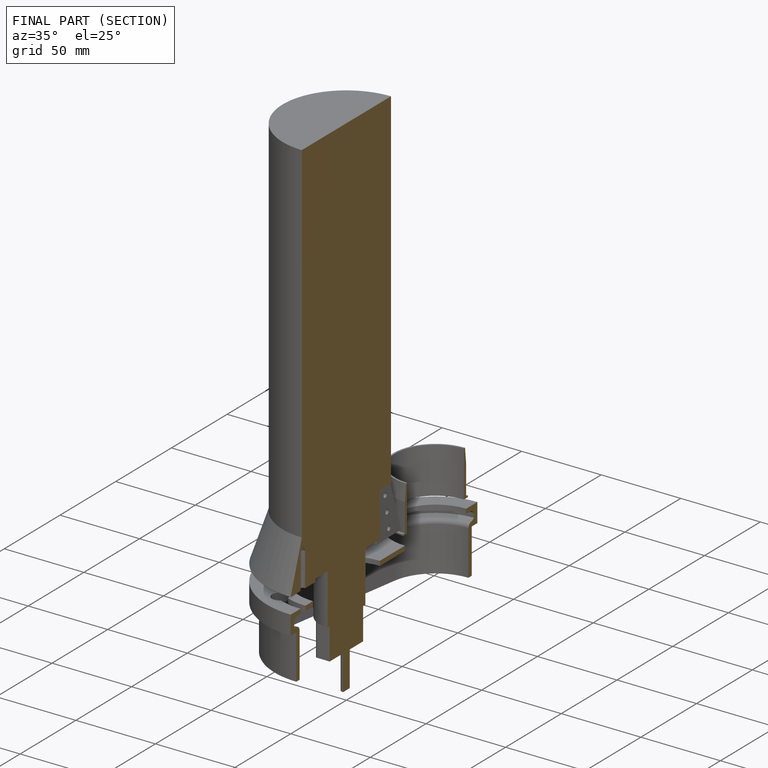
[diagram: finished part — half-section view (interior)]
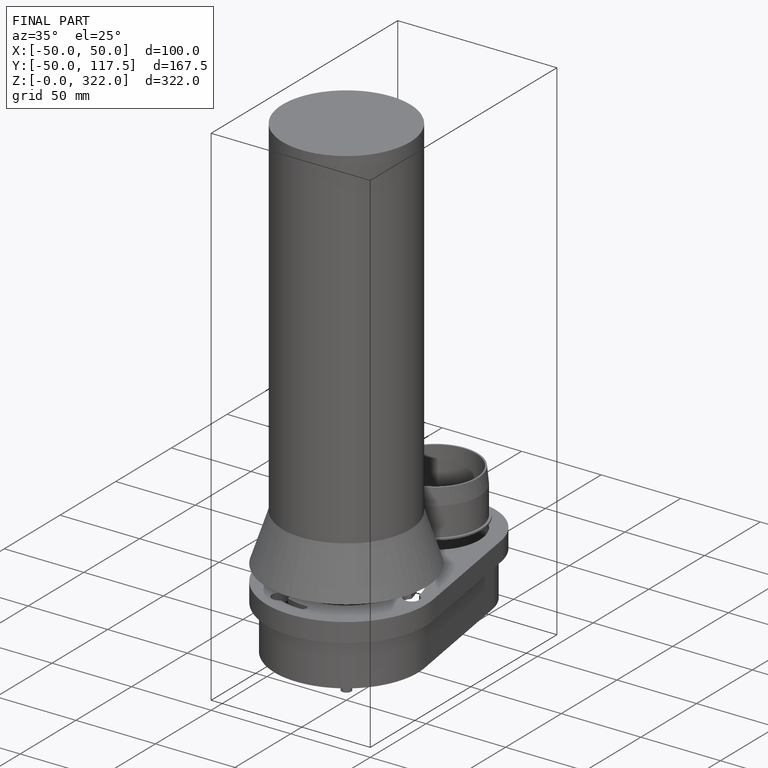
[diagram: finished part — iso view with bounding-box wireframe]
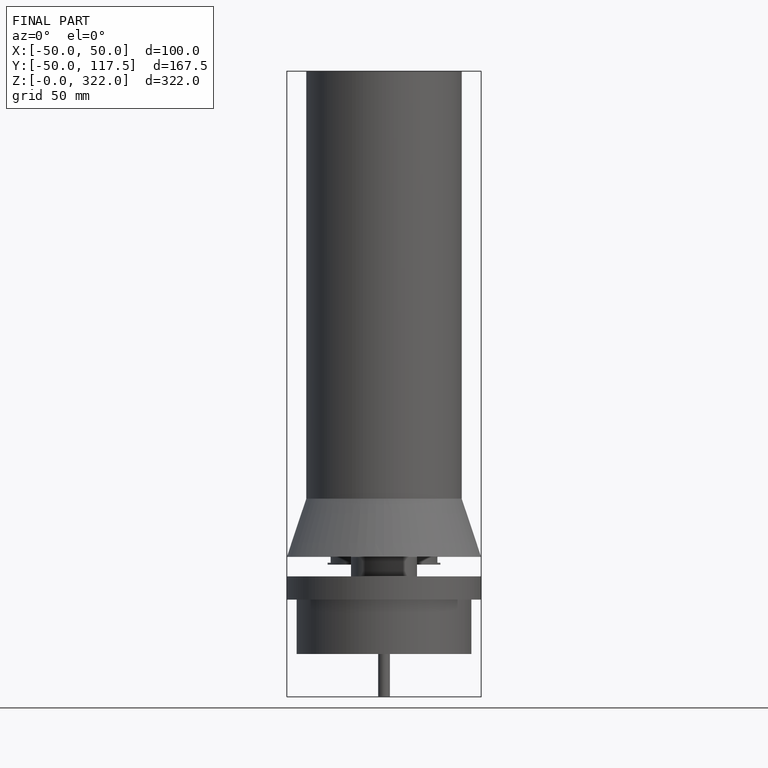
[diagram: finished part — front view with bounding-box wireframe]
